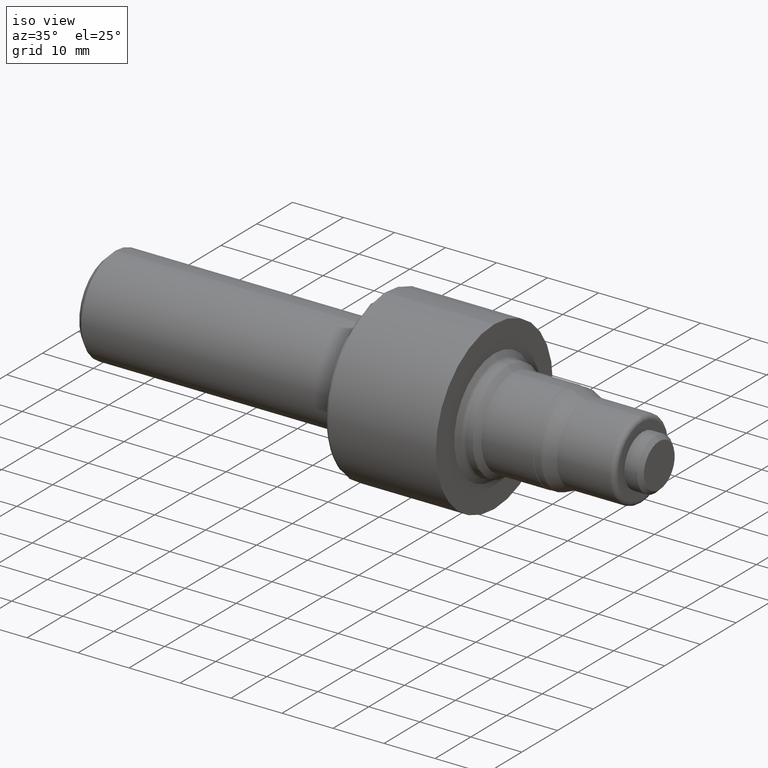
[diagram: clean part render]
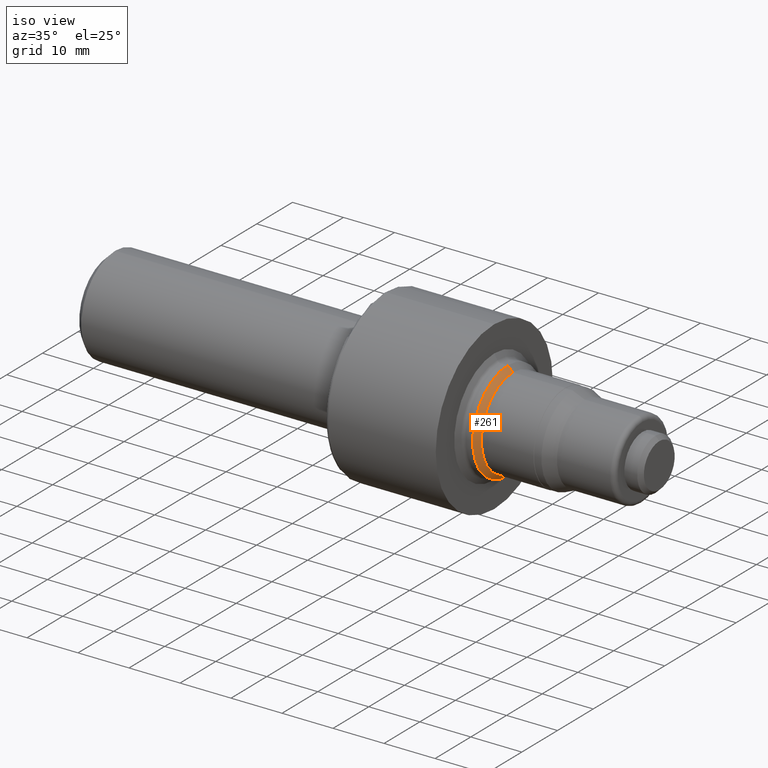
[diagram: same view with one face highlighted and labeled with its STEP entity id]
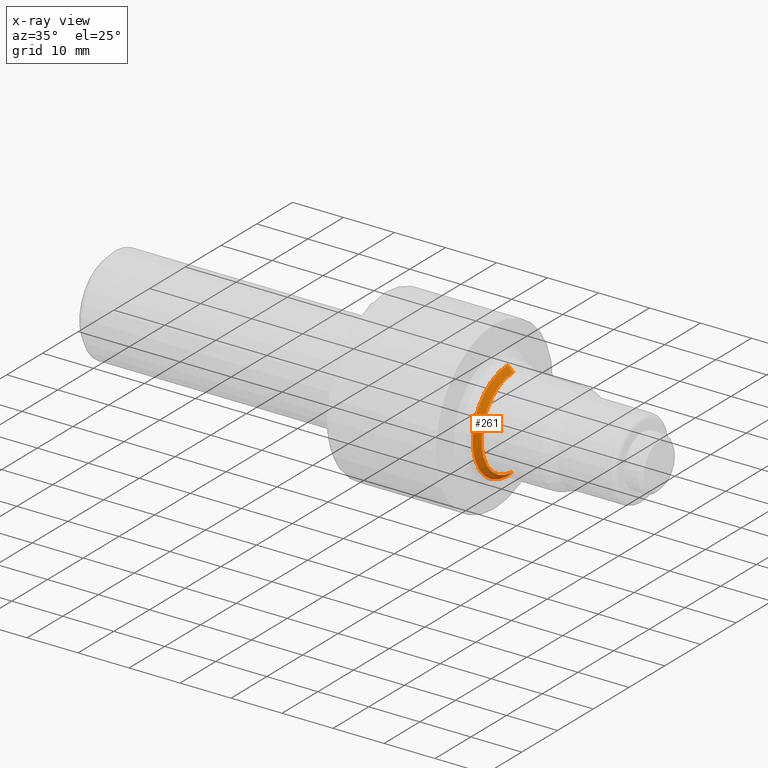
[diagram: x-ray of the same camera — body ghosted, the highlighted face saturated]
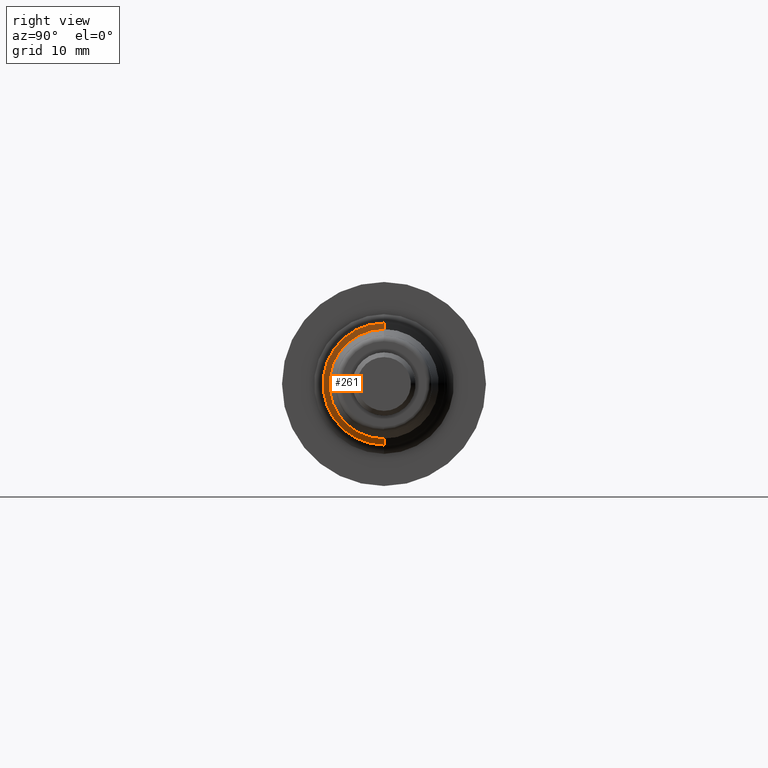
[diagram: same view with one face highlighted and labeled with its STEP entity id]
A machine part, iso view. The second image highlights one B-rep face of the part: STEP entity #261.
The next image is the same camera in x-ray: the body ghosted, the highlighted face saturated — about 0% of this face is hidden behind the body in this view.
A second angle (right view) of the same face is appended — the face is thin or edge-on in the first view.
In plain terms, the highlighted conical surface has half-angle 45 deg.
Its self-contained STEP definition (entity closure, byte-faithful):
#97 = LINE ( 'NONE', #742, #994 ) ;
#126 = DIRECTION ( 'NONE',  ( 0.0000000000000000000, 0.0000000000000000000, 1.000000000000000000 ) ) ;
#141 = CARTESIAN_POINT ( 'NONE',  ( 3.119249999999999634, 0.0000000000000000000, 0.0000000000000000000 ) ) ;
#189 = DIRECTION ( 'NONE',  ( -1.000000000000000000, -0.0000000000000000000, -0.0000000000000000000 ) ) ;
#251 = VERTEX_POINT ( 'NONE', #518 ) ;
#252 = ORIENTED_EDGE ( 'NONE', *, *, #856, .T. ) ;
#261 = ADVANCED_FACE ( 'NONE', ( #888 ), #1050, .T. ) ;
#262 = AXIS2_PLACEMENT_3D ( 'NONE', #854, #332, #606 ) ;
#332 = DIRECTION ( 'NONE',  ( -1.000000000000000000, -0.0000000000000000000, -0.0000000000000000000 ) ) ;
#372 = CARTESIAN_POINT ( 'NONE',  ( 3.080000000000000071, 0.0000000000000000000, 0.0000000000000000000 ) ) ;
#379 = VERTEX_POINT ( 'NONE', #986 ) ;
#428 = EDGE_LOOP ( 'NONE', ( #827, #252, #964, #886 ) ) ;
#432 = EDGE_CURVE ( 'NONE', #251, #1099, #97, .T. ) ;
#460 = AXIS2_PLACEMENT_3D ( 'NONE', #141, #985, #126 ) ;
#518 = CARTESIAN_POINT ( 'NONE',  ( 3.119249999999999634, 4.483738093378246400E-17, -0.3464999999999999747 ) ) ;
#536 = EDGE_CURVE ( 'NONE', #1099, #379, #801, .T. ) ;
#573 = CARTESIAN_POINT ( 'NONE',  ( 3.119249999999999634, 0.0000000000000000000, 0.3464999999999999747 ) ) ;
#593 = LINE ( 'NONE', #573, #816 ) ;
#606 = DIRECTION ( 'NONE',  ( 0.0000000000000000000, 0.0000000000000000000, 1.000000000000000000 ) ) ;
#623 = CIRCLE ( 'NONE', #460, 0.3464999999999999747 ) ;
#725 = DIRECTION ( 'NONE',  ( 0.0000000000000000000, 0.0000000000000000000, 1.000000000000000000 ) ) ;
#742 = CARTESIAN_POINT ( 'NONE',  ( 3.119249999999999634, 4.243401159045578711E-17, -0.3464999999999999747 ) ) ;
#747 = DIRECTION ( 'NONE',  ( -0.7071067811865462405, 0.0000000000000000000, 0.7071067811865486830 ) ) ;
#775 = CARTESIAN_POINT ( 'NONE',  ( 3.080000000000000071, 4.724075027710914089E-17, -0.3857499999999999818 ) ) ;
#801 = CIRCLE ( 'NONE', #911, 0.3857499999999999818 ) ;
#808 = VERTEX_POINT ( 'NONE', #967 ) ;
#816 = VECTOR ( 'NONE', #747, 39.37007874015748854 ) ;
#827 = ORIENTED_EDGE ( 'NONE', *, *, #432, .F. ) ;
#829 = DIRECTION ( 'NONE',  ( -0.7071067811865462405, 8.659560562354947649E-17, -0.7071067811865486830 ) ) ;
#854 = CARTESIAN_POINT ( 'NONE',  ( 3.119249999999999634, 0.0000000000000000000, 0.0000000000000000000 ) ) ;
#856 = EDGE_CURVE ( 'NONE', #251, #808, #623, .T. ) ;
#886 = ORIENTED_EDGE ( 'NONE', *, *, #536, .F. ) ;
#888 = FACE_OUTER_BOUND ( 'NONE', #428, .T. ) ;
#903 = EDGE_CURVE ( 'NONE', #808, #379, #593, .T. ) ;
#911 = AXIS2_PLACEMENT_3D ( 'NONE', #372, #189, #725 ) ;
#964 = ORIENTED_EDGE ( 'NONE', *, *, #903, .T. ) ;
#967 = CARTESIAN_POINT ( 'NONE',  ( 3.119249999999999634, 0.0000000000000000000, 0.3464999999999999747 ) ) ;
#985 = DIRECTION ( 'NONE',  ( -1.000000000000000000, -0.0000000000000000000, -0.0000000000000000000 ) ) ;
#986 = CARTESIAN_POINT ( 'NONE',  ( 3.080000000000000071, 0.0000000000000000000, 0.3857499999999999818 ) ) ;
#994 = VECTOR ( 'NONE', #829, 39.37007874015748854 ) ;
#1050 = CONICAL_SURFACE ( 'NONE', #262, 0.3464999999999999747, 0.7853981633974500554 ) ;
#1099 = VERTEX_POINT ( 'NONE', #775 ) ;